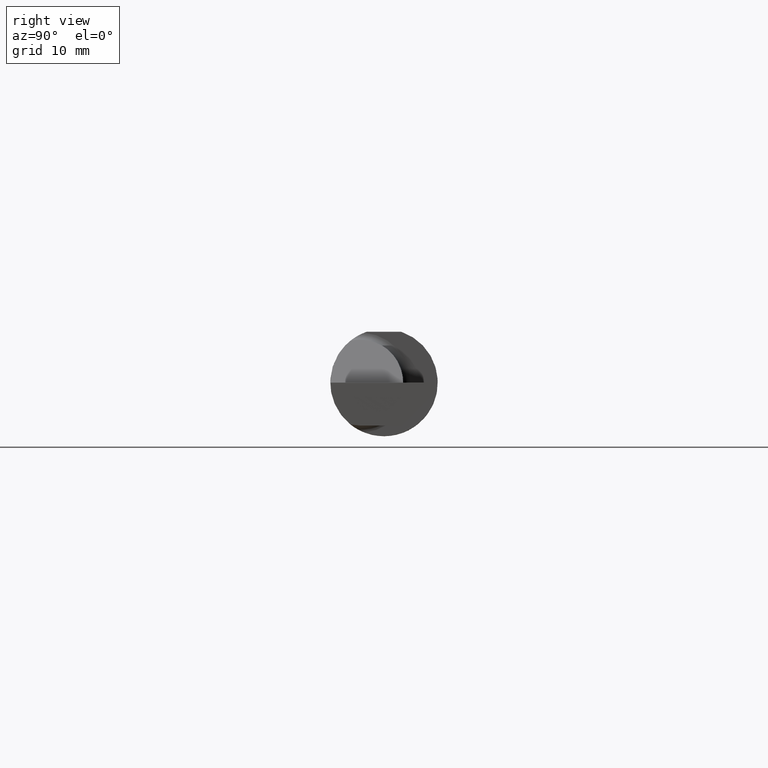
[diagram: clean part render]
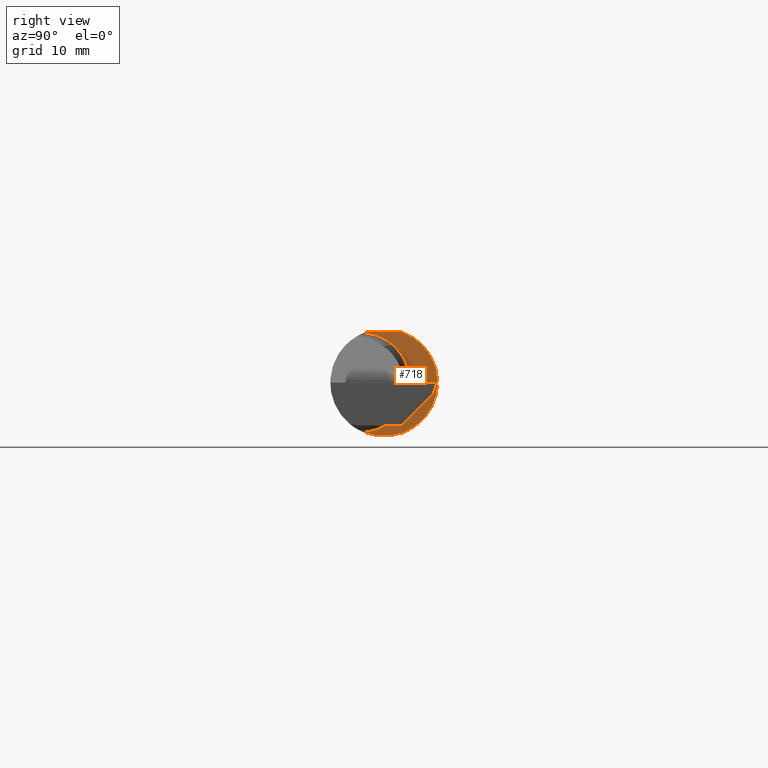
[diagram: same view with one face highlighted and labeled with its STEP entity id]
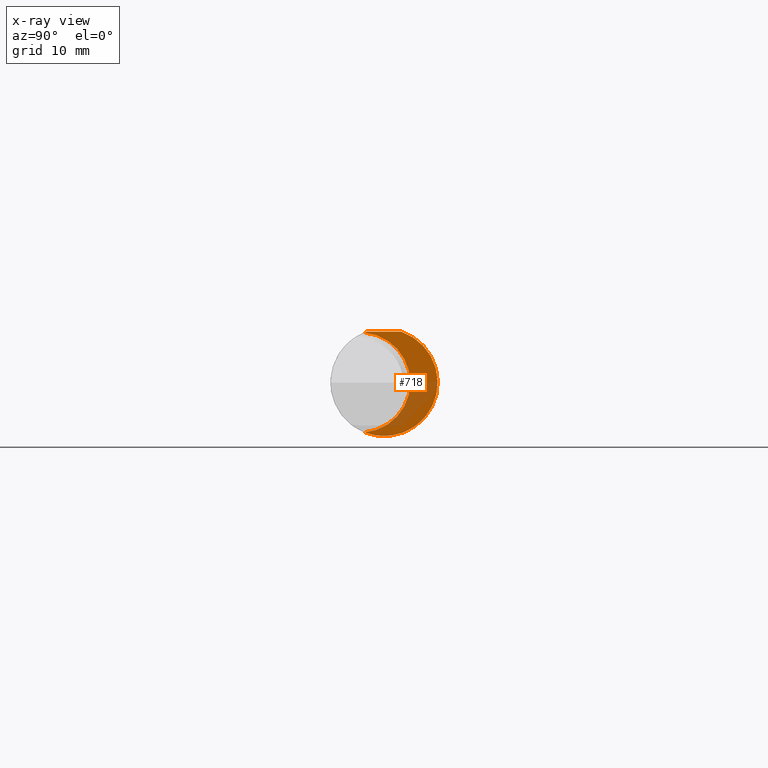
[diagram: x-ray of the same camera — body ghosted, the highlighted face saturated]
A machine part, right view. The second image highlights one B-rep face of the part: STEP entity #718.
The next image is the same camera in x-ray: the body ghosted, the highlighted face saturated — about 27% of this face is hidden behind the body in this view.
In plain terms, the highlighted planar face has unit normal (1, 0, 0).
Its self-contained STEP definition (entity closure, byte-faithful):
#23 = CARTESIAN_POINT ( 'NONE',  ( 1.949999999999999956, -0.06851976604679065053, -0.1743704796142198643 ) ) ;
#87 = ORIENTED_EDGE ( 'NONE', *, *, #297, .T. ) ;
#108 = EDGE_LOOP ( 'NONE', ( #87, #578, #160, #243 ) ) ;
#123 = DIRECTION ( 'NONE',  ( 0.000000000000000000, 0.000000000000000000, -1.000000000000000000 ) ) ;
#136 = PLANE ( 'NONE',  #858 ) ;
#160 = ORIENTED_EDGE ( 'NONE', *, *, #945, .T. ) ;
#190 = EDGE_CURVE ( 'NONE', #740, #657, #365, .T. ) ;
#198 = CARTESIAN_POINT ( 'NONE',  ( 1.949999999999999956, 0.000000000000000000, 0.000000000000000000 ) ) ;
#243 = ORIENTED_EDGE ( 'NONE', *, *, #518, .T. ) ;
#288 = AXIS2_PLACEMENT_3D ( 'NONE', #393, #957, #1031 ) ;
#297 = EDGE_CURVE ( 'NONE', #478, #657, #670, .T. ) ;
#317 = CARTESIAN_POINT ( 'NONE',  ( 1.949999999999999956, -0.06851976604679065053, 0.1743704796142198643 ) ) ;
#336 = DIRECTION ( 'NONE',  ( 0.000000000000000000, 0.000000000000000000, 1.000000000000000000 ) ) ;
#346 = CIRCLE ( 'NONE', #940, 0.1873499999999999888 ) ;
#363 = FACE_OUTER_BOUND ( 'NONE', #108, .T. ) ;
#365 = LINE ( 'NONE', #934, #735 ) ;
#381 = DIRECTION ( 'NONE',  ( -0.000000000000000000, 1.000000000000000000, 0.000000000000000000 ) ) ;
#393 = CARTESIAN_POINT ( 'NONE',  ( 1.949999999999999956, 0.000000000000000000, 0.000000000000000000 ) ) ;
#429 = VERTEX_POINT ( 'NONE', #317 ) ;
#478 = VERTEX_POINT ( 'NONE', #23 ) ;
#518 = EDGE_CURVE ( 'NONE', #429, #478, #774, .T. ) ;
#578 = ORIENTED_EDGE ( 'NONE', *, *, #190, .F. ) ;
#594 = DIRECTION ( 'NONE',  ( -1.000000000000000000, -0.000000000000000000, -0.000000000000000000 ) ) ;
#628 = CARTESIAN_POINT ( 'NONE',  ( 1.949999999999999956, -0.06039039658753699025, 0.1773499999999999799 ) ) ;
#657 = VERTEX_POINT ( 'NONE', #932 ) ;
#670 = CIRCLE ( 'NONE', #288, 0.1873499999999999888 ) ;
#705 = CARTESIAN_POINT ( 'NONE',  ( 1.949999999999999956, 0.2666499999999999981, 0.000000000000000000 ) ) ;
#718 = ADVANCED_FACE ( 'NONE', ( #363 ), #136, .T. ) ;
#735 = VECTOR ( 'NONE', #381, 39.37007874015748143 ) ;
#740 = VERTEX_POINT ( 'NONE', #628 ) ;
#757 = AXIS2_PLACEMENT_3D ( 'NONE', #851, #594, #336 ) ;
#774 = CIRCLE ( 'NONE', #757, 0.1749999999999999889 ) ;
#781 = DIRECTION ( 'NONE',  ( 1.000000000000000000, 0.000000000000000000, 0.000000000000000000 ) ) ;
#851 = CARTESIAN_POINT ( 'NONE',  ( 1.949999999999999956, -0.08334999999999996578, 0.000000000000000000 ) ) ;
#858 = AXIS2_PLACEMENT_3D ( 'NONE', #705, #781, #123 ) ;
#863 = DIRECTION ( 'NONE',  ( 0.000000000000000000, 0.000000000000000000, -1.000000000000000000 ) ) ;
#932 = CARTESIAN_POINT ( 'NONE',  ( 1.949999999999999956, 0.06039039658754216666, 0.1773499999999999799 ) ) ;
#934 = CARTESIAN_POINT ( 'NONE',  ( 1.949999999999999956, -0.1873500000000000165, 0.1773499999999999799 ) ) ;
#935 = DIRECTION ( 'NONE',  ( 1.000000000000000000, 0.000000000000000000, 0.000000000000000000 ) ) ;
#940 = AXIS2_PLACEMENT_3D ( 'NONE', #198, #935, #863 ) ;
#945 = EDGE_CURVE ( 'NONE', #740, #429, #346, .T. ) ;
#957 = DIRECTION ( 'NONE',  ( 1.000000000000000000, 0.000000000000000000, 0.000000000000000000 ) ) ;
#1031 = DIRECTION ( 'NONE',  ( 0.000000000000000000, 0.000000000000000000, -1.000000000000000000 ) ) ;